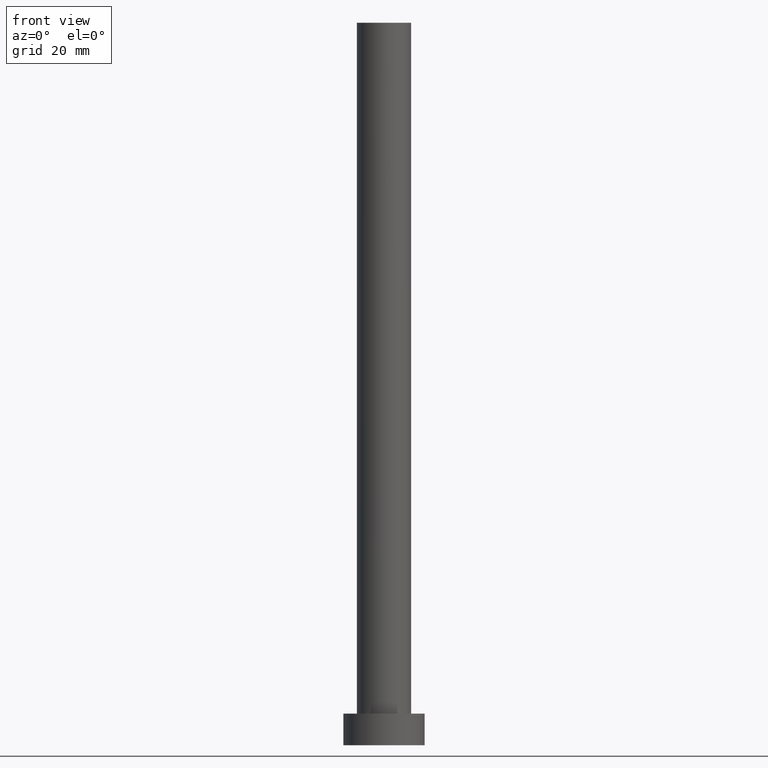
[diagram: clean part render]
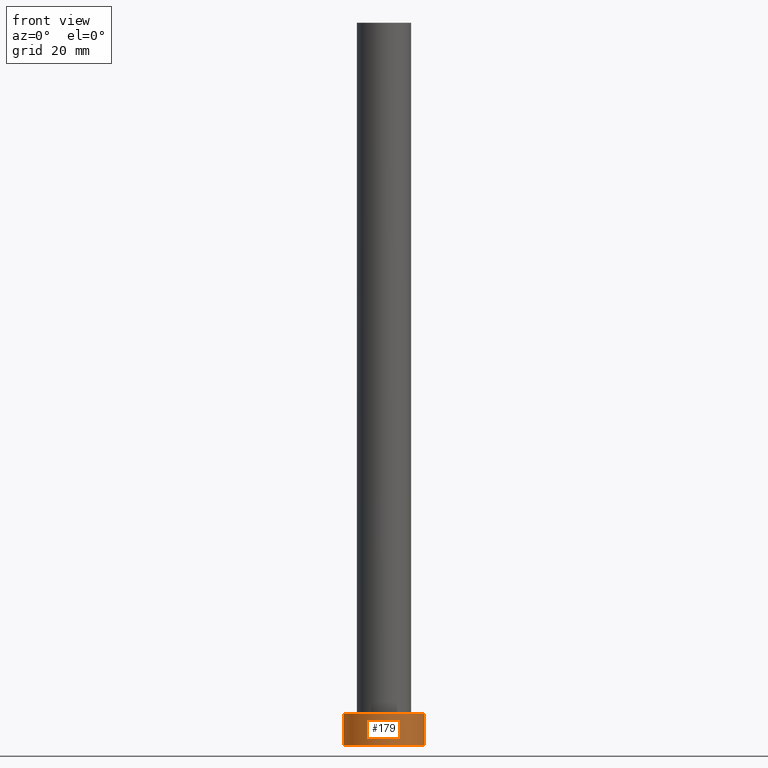
[diagram: same view with one face highlighted and labeled with its STEP entity id]
A machine part, front view. The second image highlights one B-rep face of the part: STEP entity #179.
In plain terms, the highlighted cylindrical surface (partial cylindrical patch) has radius 9 mm, axis along (-0, -0, -1).
Its self-contained STEP definition (entity closure, byte-faithful):
#1 = DIRECTION ( 'NONE',  ( 1.000000000000000000, 0.000000000000000000, 0.000000000000000000 ) ) ;
#3 = DIRECTION ( 'NONE',  ( -0.000000000000000000, -0.000000000000000000, -1.000000000000000000 ) ) ;
#7 = VECTOR ( 'NONE', #105, 1000.000000000000000 ) ;
#12 = DIRECTION ( 'NONE',  ( -0.000000000000000000, -0.000000000000000000, -1.000000000000000000 ) ) ;
#15 = CARTESIAN_POINT ( 'NONE',  ( -9.000000000000000000, 0.000000000000000000, 7.000000000000000000 ) ) ;
#18 = CARTESIAN_POINT ( 'NONE',  ( -9.000000000000000000, 0.000000000000000000, 0.000000000000000000 ) ) ;
#19 = DIRECTION ( 'NONE',  ( 1.000000000000000000, 0.000000000000000000, 0.000000000000000000 ) ) ;
#20 = CYLINDRICAL_SURFACE ( 'NONE', #162, 9.000000000000000000 ) ;
#31 = CIRCLE ( 'NONE', #225, 9.000000000000000000 ) ;
#35 = LINE ( 'NONE', #116, #7 ) ;
#42 = EDGE_CURVE ( 'NONE', #91, #186, #228, .T. ) ;
#50 = CARTESIAN_POINT ( 'NONE',  ( 9.000000000000000000, 1.102182119232617714E-15, 0.000000000000000000 ) ) ;
#56 = EDGE_CURVE ( 'NONE', #91, #115, #35, .T. ) ;
#66 = DIRECTION ( 'NONE',  ( -1.000000000000000000, 0.000000000000000000, 0.000000000000000000 ) ) ;
#79 = LINE ( 'NONE', #193, #185 ) ;
#83 = EDGE_CURVE ( 'NONE', #186, #129, #79, .T. ) ;
#91 = VERTEX_POINT ( 'NONE', #15 ) ;
#105 = DIRECTION ( 'NONE',  ( -0.000000000000000000, -0.000000000000000000, -1.000000000000000000 ) ) ;
#112 = ORIENTED_EDGE ( 'NONE', *, *, #42, .F. ) ;
#115 = VERTEX_POINT ( 'NONE', #18 ) ;
#116 = CARTESIAN_POINT ( 'NONE',  ( -9.000000000000000000, 0.000000000000000000, 7.000000000000000000 ) ) ;
#129 = VERTEX_POINT ( 'NONE', #50 ) ;
#150 = DIRECTION ( 'NONE',  ( 0.000000000000000000, 0.000000000000000000, 1.000000000000000000 ) ) ;
#156 = EDGE_LOOP ( 'NONE', ( #246, #112, #252, #207 ) ) ;
#162 = AXIS2_PLACEMENT_3D ( 'NONE', #204, #3, #66 ) ;
#176 = CARTESIAN_POINT ( 'NONE',  ( 9.000000000000000000, 1.102182119232617714E-15, 7.000000000000000000 ) ) ;
#177 = DIRECTION ( 'NONE',  ( 0.000000000000000000, 0.000000000000000000, 1.000000000000000000 ) ) ;
#178 = FACE_OUTER_BOUND ( 'NONE', #156, .T. ) ;
#179 = ADVANCED_FACE ( 'NONE', ( #178 ), #20, .T. ) ;
#185 = VECTOR ( 'NONE', #12, 1000.000000000000000 ) ;
#186 = VERTEX_POINT ( 'NONE', #176 ) ;
#193 = CARTESIAN_POINT ( 'NONE',  ( 9.000000000000000000, 1.102182119232617714E-15, 7.000000000000000000 ) ) ;
#196 = CARTESIAN_POINT ( 'NONE',  ( 0.000000000000000000, 0.000000000000000000, 7.000000000000000000 ) ) ;
#204 = CARTESIAN_POINT ( 'NONE',  ( 0.000000000000000000, 0.000000000000000000, 7.000000000000000000 ) ) ;
#207 = ORIENTED_EDGE ( 'NONE', *, *, #240, .T. ) ;
#222 = AXIS2_PLACEMENT_3D ( 'NONE', #196, #177, #19 ) ;
#225 = AXIS2_PLACEMENT_3D ( 'NONE', #242, #150, #1 ) ;
#228 = CIRCLE ( 'NONE', #222, 9.000000000000000000 ) ;
#240 = EDGE_CURVE ( 'NONE', #115, #129, #31, .T. ) ;
#242 = CARTESIAN_POINT ( 'NONE',  ( 0.000000000000000000, 0.000000000000000000, 0.000000000000000000 ) ) ;
#246 = ORIENTED_EDGE ( 'NONE', *, *, #83, .F. ) ;
#252 = ORIENTED_EDGE ( 'NONE', *, *, #56, .T. ) ;